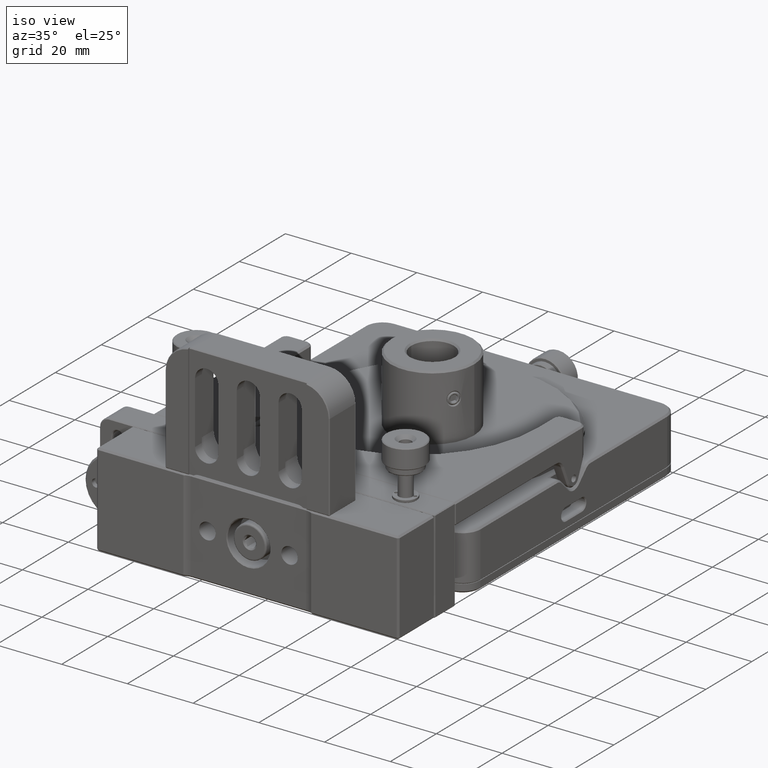
[diagram: clean part render]
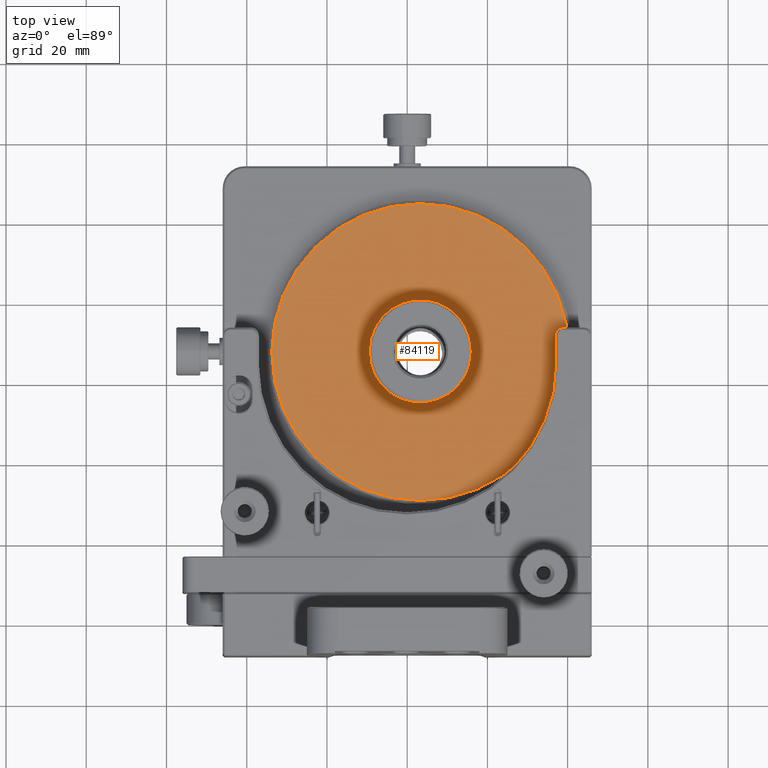
[diagram: tour spotlight — one face highlighted and labeled with its STEP entity id]
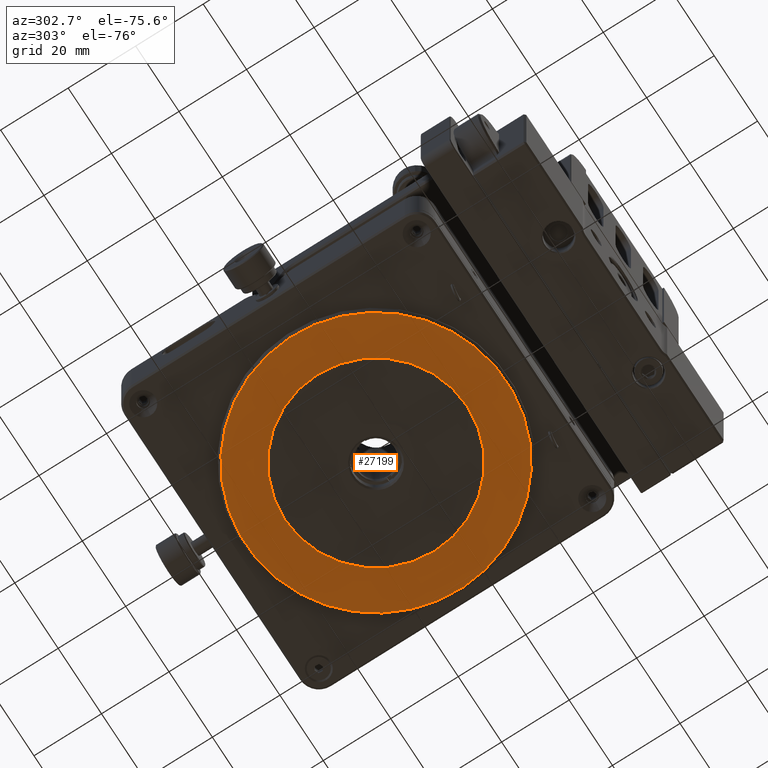
[diagram: tour spotlight — one face highlighted and labeled with its STEP entity id]
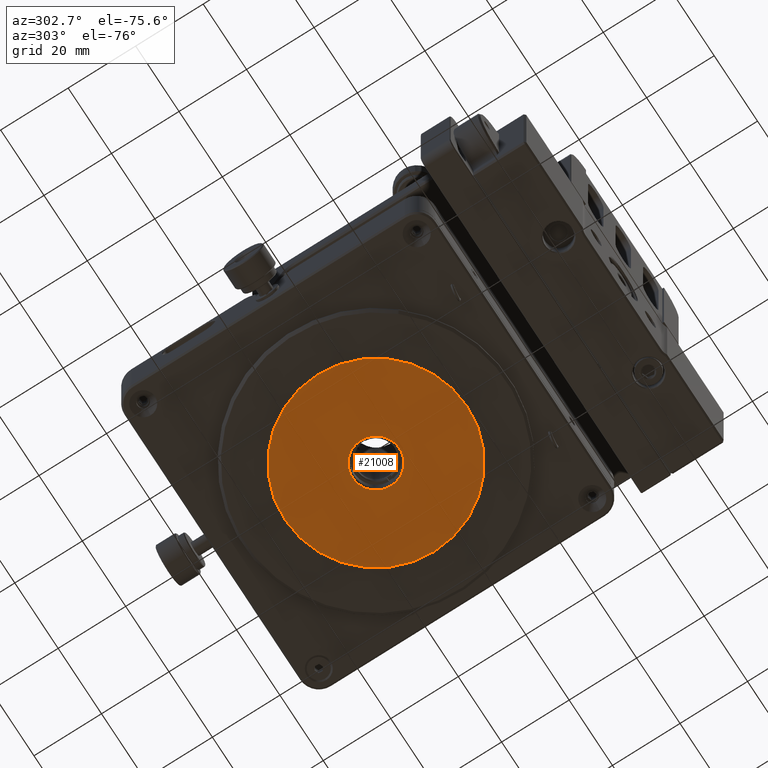
[diagram: tour spotlight — one face highlighted and labeled with its STEP entity id]
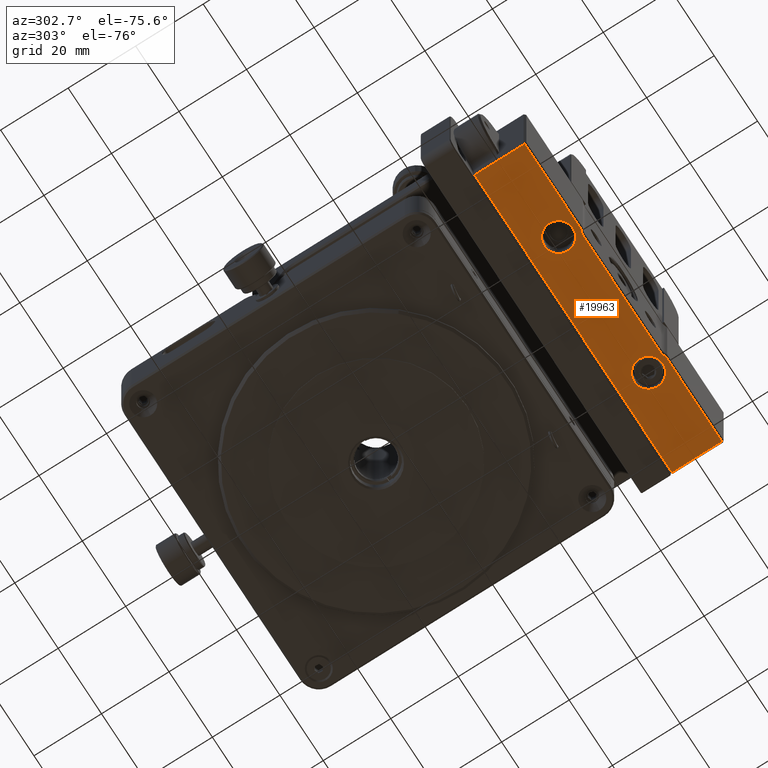
[diagram: tour spotlight — one face highlighted and labeled with its STEP entity id]
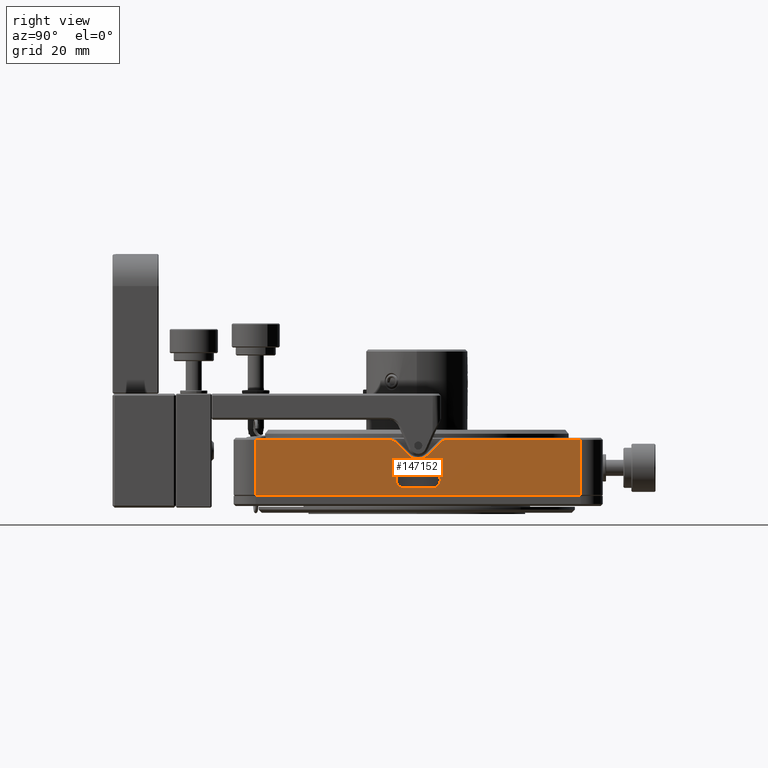
[diagram: tour spotlight — one face highlighted and labeled with its STEP entity id]
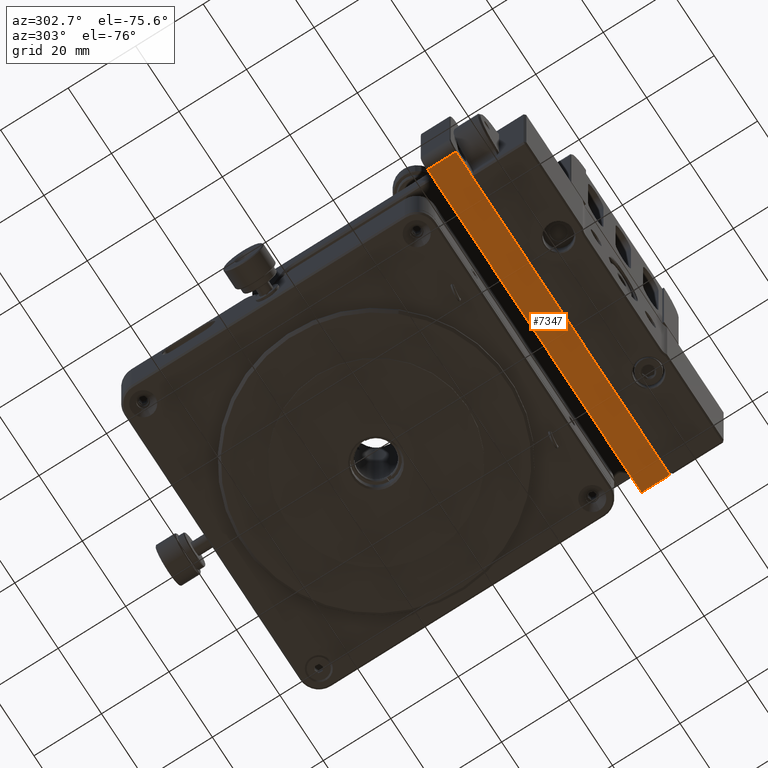
[diagram: tour spotlight — one face highlighted and labeled with its STEP entity id]
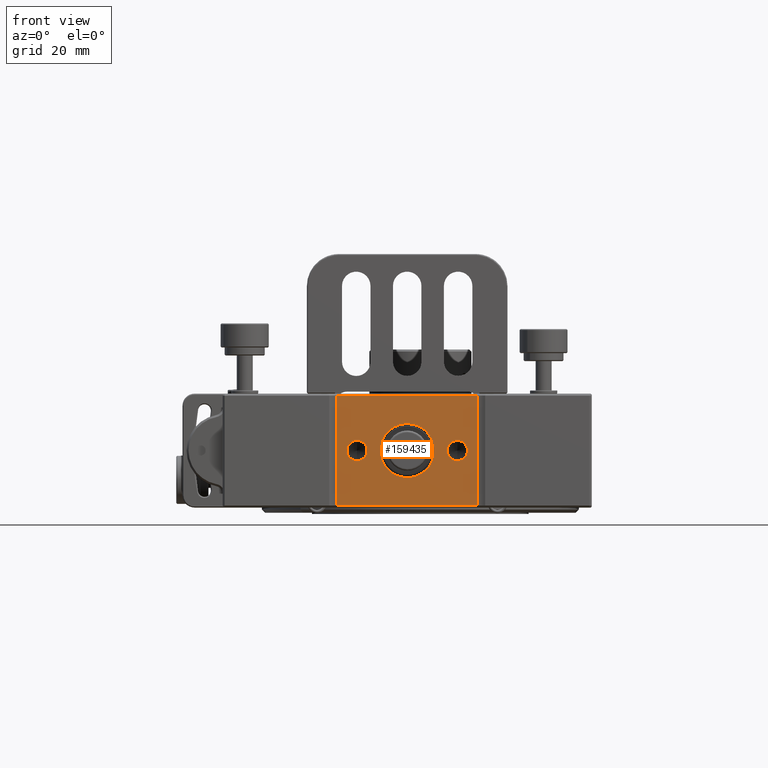
[diagram: tour spotlight — one face highlighted and labeled with its STEP entity id]
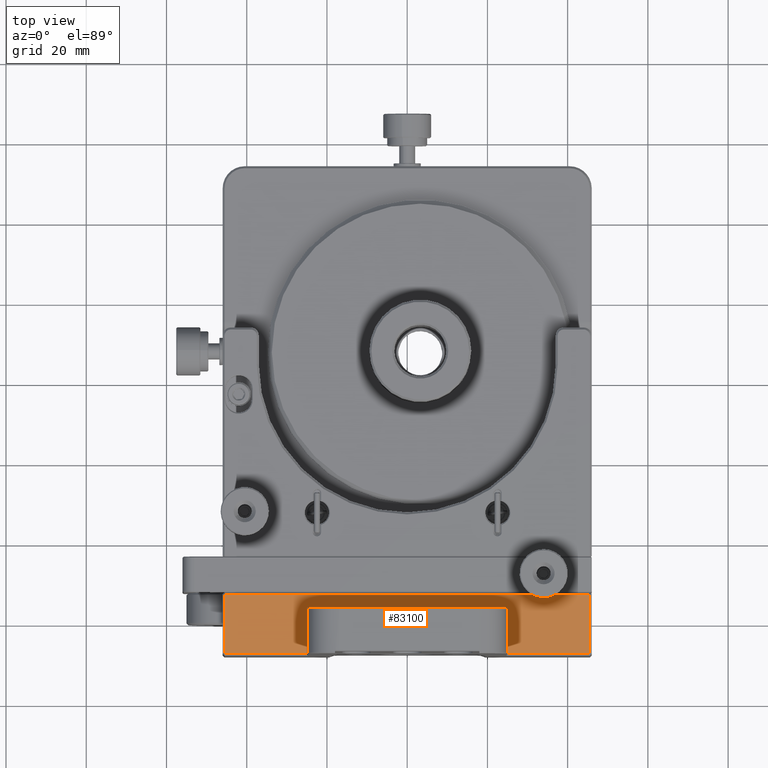
[diagram: tour spotlight — one face highlighted and labeled with its STEP entity id]
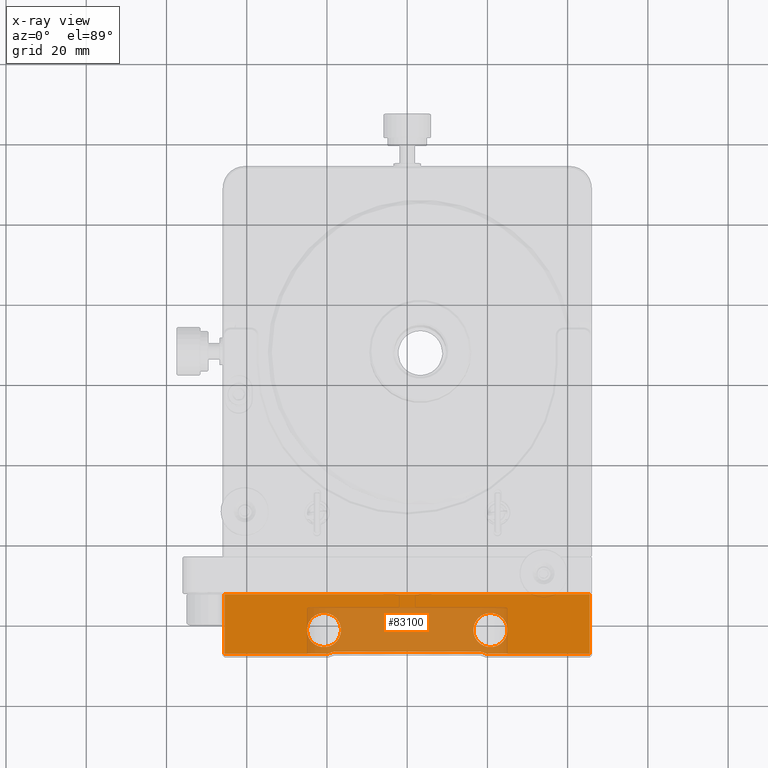
[diagram: x-ray of the same camera — body ghosted, this tour face saturated]
A machine part: a face-by-face anatomy tour. The part has 1398 B-rep faces; the first image is the clean iso view, then the 8 largest visible faces are spotlighted one at a time (largest first), each with its STEP entity span.

Face 1 — top view, entity #84119. In plain terms, the highlighted planar face has unit normal (0, 0, 1).
Definition (entity closure, byte-faithful):
#5955 = AXIS2_PLACEMENT_3D ( 'NONE', #39961, #134300, #120079 ) ;
#6163 = DIRECTION ( 'NONE',  ( 1.000000000000000000, 0.000000000000000000, 0.000000000000000000 ) ) ;
#6278 = ORIENTED_EDGE ( 'NONE', *, *, #121058, .T. ) ;
#9768 = EDGE_CURVE ( 'NONE', #132143, #134606, #70067, .T. ) ;
#19925 = ORIENTED_EDGE ( 'NONE', *, *, #75592, .T. ) ;
#21639 = CIRCLE ( 'NONE', #78543, 36.99999999999999289 ) ;
#22031 = ORIENTED_EDGE ( 'NONE', *, *, #103748, .T. ) ;
#28911 = DIRECTION ( 'NONE',  ( 0.000000000000000000, 0.000000000000000000, 1.000000000000000000 ) ) ;
#29723 = CARTESIAN_POINT ( 'NONE',  ( 3.261633096731147763, 67.93690672952565990, 5.200000000000008171 ) ) ;
#39916 = CIRCLE ( 'NONE', #139432, 12.69800000000000040 ) ;
#39961 = CARTESIAN_POINT ( 'NONE',  ( 3.261633096731147763, 67.93690672952565990, 5.200000000000009948 ) ) ;
#43936 = DIRECTION ( 'NONE',  ( -0.000000000000000000, -0.000000000000000000, -1.000000000000000000 ) ) ;
#53599 = CARTESIAN_POINT ( 'NONE',  ( -33.73836690326884025, 67.93690672952565990, 5.200000000000009948 ) ) ;
#59571 = CARTESIAN_POINT ( 'NONE',  ( 3.261633096731147763, 67.93690672952565990, 5.200000000000009948 ) ) ;
#63163 = FACE_OUTER_BOUND ( 'NONE', #143567, .T. ) ;
#65465 = VERTEX_POINT ( 'NONE', #147551 ) ;
#70067 = CIRCLE ( 'NONE', #172303, 36.99999999999999289 ) ;
#75592 = EDGE_CURVE ( 'NONE', #81756, #65465, #144565, .T. ) ;
#78543 = AXIS2_PLACEMENT_3D ( 'NONE', #59571, #111236, #6163 ) ;
#81756 = VERTEX_POINT ( 'NONE', #88404 ) ;
#84119 = ADVANCED_FACE ( 'NONE', ( #63163, #159269 ), #117449, .T. ) ;
#88404 = CARTESIAN_POINT ( 'NONE',  ( -9.436366903268853079, 67.93690672952565990, 5.200000000000008171 ) ) ;
#97366 = DIRECTION ( 'NONE',  ( 1.000000000000000000, 0.000000000000000000, 0.000000000000000000 ) ) ;
#103748 = EDGE_CURVE ( 'NONE', #134606, #132143, #21639, .T. ) ;
#105843 = DIRECTION ( 'NONE',  ( 1.000000000000000000, 0.000000000000000000, 0.000000000000000000 ) ) ;
#109880 = CARTESIAN_POINT ( 'NONE',  ( 3.261633096731147763, 67.93690672952565990, 5.200000000000009948 ) ) ;
#110411 = AXIS2_PLACEMENT_3D ( 'NONE', #132547, #121852, #105843 ) ;
#111236 = DIRECTION ( 'NONE',  ( 0.000000000000000000, 0.000000000000000000, 1.000000000000000000 ) ) ;
#111848 = ORIENTED_EDGE ( 'NONE', *, *, #9768, .T. ) ;
#117449 = PLANE ( 'NONE',  #5955 ) ;
#119591 = EDGE_LOOP ( 'NONE', ( #6278, #19925 ) ) ;
#120079 = DIRECTION ( 'NONE',  ( 1.000000000000000000, 0.000000000000000000, -0.000000000000000000 ) ) ;
#121058 = EDGE_CURVE ( 'NONE', #65465, #81756, #39916, .T. ) ;
#121852 = DIRECTION ( 'NONE',  ( -0.000000000000000000, -0.000000000000000000, -1.000000000000000000 ) ) ;
#125063 = CARTESIAN_POINT ( 'NONE',  ( 40.26163309673114554, 67.93690672952565990, 5.200000000000009948 ) ) ;
#132143 = VERTEX_POINT ( 'NONE', #125063 ) ;
#132547 = CARTESIAN_POINT ( 'NONE',  ( 3.261633096731147763, 67.93690672952565990, 5.200000000000008171 ) ) ;
#134300 = DIRECTION ( 'NONE',  ( 0.000000000000000000, 0.000000000000000000, 1.000000000000000000 ) ) ;
#134606 = VERTEX_POINT ( 'NONE', #53599 ) ;
#139432 = AXIS2_PLACEMENT_3D ( 'NONE', #29723, #43936, #97366 ) ;
#143567 = EDGE_LOOP ( 'NONE', ( #22031, #111848 ) ) ;
#144565 = CIRCLE ( 'NONE', #110411, 12.69800000000000040 ) ;
#147551 = CARTESIAN_POINT ( 'NONE',  ( 15.95963309673114772, 67.93690672952565990, 5.200000000000008171 ) ) ;
#159269 = FACE_BOUND ( 'NONE', #119591, .T. ) ;
#172303 = AXIS2_PLACEMENT_3D ( 'NONE', #109880, #28911, #174868 ) ;
#174868 = DIRECTION ( 'NONE',  ( 1.000000000000000000, 0.000000000000000000, 0.000000000000000000 ) ) ;

Face 2 — auxiliary view, entity #27199. In plain terms, the highlighted planar face has unit normal (-0, 0, -1).
Definition (entity closure, byte-faithful):
#287 = ORIENTED_EDGE ( 'NONE', *, *, #173127, .T. ) ;
#1193 = DIRECTION ( 'NONE',  ( 0.7555984124574209870, 0.6550351434021115526, 0.000000000000000000 ) ) ;
#1819 = DIRECTION ( 'NONE',  ( -5.454263236077491417E-17, 6.291620661603332126E-17, -1.000000000000000000 ) ) ;
#9211 = FACE_OUTER_BOUND ( 'NONE', #137910, .T. ) ;
#10942 = PLANE ( 'NONE',  #49997 ) ;
#11166 = CARTESIAN_POINT ( 'NONE',  ( -25.98002546537102120, 42.58704667986394554, -15.49999999999999467 ) ) ;
#13057 = CIRCLE ( 'NONE', #18801, 26.99999999999999645 ) ;
#18801 = AXIS2_PLACEMENT_3D ( 'NONE', #80155, #1819, #135326 ) ;
#21371 = CARTESIAN_POINT ( 'NONE',  ( 32.50329165883330518, 93.28676677918733162, -15.49999999999999467 ) ) ;
#22565 = FACE_BOUND ( 'NONE', #42042, .T. ) ;
#27199 = ADVANCED_FACE ( 'NONE', ( #22565, #9211 ), #10942, .T. ) ;
#34838 = VERTEX_POINT ( 'NONE', #107040 ) ;
#41336 = ORIENTED_EDGE ( 'NONE', *, *, #159779, .F. ) ;
#42042 = EDGE_LOOP ( 'NONE', ( #41336, #151200 ) ) ;
#43810 = DIRECTION ( 'NONE',  ( -5.454263236077491417E-17, 6.291620661603332126E-17, -1.000000000000000000 ) ) ;
#47848 = VERTEX_POINT ( 'NONE', #21371 ) ;
#49997 = AXIS2_PLACEMENT_3D ( 'NONE', #76862, #117780, #172056 ) ;
#52266 = VERTEX_POINT ( 'NONE', #78547 ) ;
#57186 = CARTESIAN_POINT ( 'NONE',  ( 3.261633096731141102, 67.93690672952564569, -15.49999999999999467 ) ) ;
#66666 = VERTEX_POINT ( 'NONE', #11166 ) ;
#68281 = AXIS2_PLACEMENT_3D ( 'NONE', #106283, #82250, #136540 ) ;
#74288 = EDGE_CURVE ( 'NONE', #47848, #66666, #113194, .T. ) ;
#76859 = AXIS2_PLACEMENT_3D ( 'NONE', #57186, #43810, #123061 ) ;
#76862 = CARTESIAN_POINT ( 'NONE',  ( 3.261633096731141102, 67.93690672952564569, -15.49999999999999467 ) ) ;
#78547 = CARTESIAN_POINT ( 'NONE',  ( 30.26163309673114554, 67.93690672952565990, -15.49999999999999645 ) ) ;
#80155 = CARTESIAN_POINT ( 'NONE',  ( 3.261633096731147763, 67.93690672952565990, -15.49999999999999467 ) ) ;
#82250 = DIRECTION ( 'NONE',  ( -5.454263236077491417E-17, 6.291620661603332126E-17, -1.000000000000000000 ) ) ;
#84805 = CARTESIAN_POINT ( 'NONE',  ( 3.261633096731141102, 67.93690672952564569, -15.49999999999999467 ) ) ;
#87542 = AXIS2_PLACEMENT_3D ( 'NONE', #84805, #139102, #1193 ) ;
#106283 = CARTESIAN_POINT ( 'NONE',  ( 3.261633096731147763, 67.93690672952565990, -15.49999999999999467 ) ) ;
#107040 = CARTESIAN_POINT ( 'NONE',  ( -23.73836690326885090, 67.93690672952565990, -15.49999999999999289 ) ) ;
#113194 = CIRCLE ( 'NONE', #87542, 38.69999999999996021 ) ;
#117780 = DIRECTION ( 'NONE',  ( -5.454263236077490801E-17, 6.291620661603332126E-17, -1.000000000000000000 ) ) ;
#120878 = EDGE_CURVE ( 'NONE', #52266, #34838, #144985, .T. ) ;
#121652 = ORIENTED_EDGE ( 'NONE', *, *, #74288, .T. ) ;
#123061 = DIRECTION ( 'NONE',  ( 0.7555984124574209870, 0.6550351434021115526, 0.000000000000000000 ) ) ;
#135326 = DIRECTION ( 'NONE',  ( 0.000000000000000000, 1.000000000000000000, 6.424901762877064728E-17 ) ) ;
#136540 = DIRECTION ( 'NONE',  ( 0.000000000000000000, 1.000000000000000000, 6.424901762877064728E-17 ) ) ;
#137910 = EDGE_LOOP ( 'NONE', ( #287, #121652 ) ) ;
#139102 = DIRECTION ( 'NONE',  ( -5.454263236077491417E-17, 6.291620661603332126E-17, -1.000000000000000000 ) ) ;
#144985 = CIRCLE ( 'NONE', #68281, 26.99999999999999645 ) ;
#145076 = CIRCLE ( 'NONE', #76859, 38.69999999999996021 ) ;
#151200 = ORIENTED_EDGE ( 'NONE', *, *, #120878, .F. ) ;
#159779 = EDGE_CURVE ( 'NONE', #34838, #52266, #13057, .T. ) ;
#172056 = DIRECTION ( 'NONE',  ( 0.7555984124574209870, 0.6550351434021117747, 0.000000000000000000 ) ) ;
#173127 = EDGE_CURVE ( 'NONE', #66666, #47848, #145076, .T. ) ;

Face 3 — auxiliary view, entity #21008. In plain terms, the highlighted planar face has unit normal (0, 0, 1).
Definition (entity closure, byte-faithful):
#5701 = ORIENTED_EDGE ( 'NONE', *, *, #52509, .T. ) ;
#13046 = AXIS2_PLACEMENT_3D ( 'NONE', #164058, #151579, #99028 ) ;
#13576 = VERTEX_POINT ( 'NONE', #130342 ) ;
#21008 = ADVANCED_FACE ( 'NONE', ( #118914, #75366 ), #49521, .F. ) ;
#24574 = VERTEX_POINT ( 'NONE', #152914 ) ;
#30927 = CARTESIAN_POINT ( 'NONE',  ( 3.261633096731147763, 67.93690672952565990, -15.79999999999999538 ) ) ;
#40245 = DIRECTION ( 'NONE',  ( 0.000000000000000000, 0.000000000000000000, -1.000000000000000000 ) ) ;
#49521 = PLANE ( 'NONE',  #53704 ) ;
#52131 = DIRECTION ( 'NONE',  ( 0.000000000000000000, 0.000000000000000000, 1.000000000000000000 ) ) ;
#52509 = EDGE_CURVE ( 'NONE', #24574, #13576, #114687, .T. ) ;
#52698 = CARTESIAN_POINT ( 'NONE',  ( 3.261633096731147763, 67.93690672952565990, -15.79999999999999538 ) ) ;
#52792 = CIRCLE ( 'NONE', #13046, 6.974999999999995204 ) ;
#53704 = AXIS2_PLACEMENT_3D ( 'NONE', #103798, #52131, #173201 ) ;
#53901 = EDGE_CURVE ( 'NONE', #153304, #141161, #171713, .T. ) ;
#64961 = AXIS2_PLACEMENT_3D ( 'NONE', #52698, #40245, #174633 ) ;
#75364 = CARTESIAN_POINT ( 'NONE',  ( 30.26163309673114554, 67.93690672952565990, -15.79999999999999538 ) ) ;
#75366 = FACE_OUTER_BOUND ( 'NONE', #172231, .T. ) ;
#77682 = CARTESIAN_POINT ( 'NONE',  ( 3.261633096731147763, 67.93690672952565990, -15.79999999999999538 ) ) ;
#85211 = DIRECTION ( 'NONE',  ( -1.000000000000000000, 0.000000000000000000, 0.000000000000000000 ) ) ;
#92144 = AXIS2_PLACEMENT_3D ( 'NONE', #30927, #167096, #85211 ) ;
#99028 = DIRECTION ( 'NONE',  ( 1.000000000000000000, 0.000000000000000000, 0.000000000000000000 ) ) ;
#103798 = CARTESIAN_POINT ( 'NONE',  ( 3.261633096731147763, 67.93690672952565990, -15.79999999999999538 ) ) ;
#105253 = DIRECTION ( 'NONE',  ( 1.000000000000000000, 0.000000000000000000, 0.000000000000000000 ) ) ;
#110610 = ORIENTED_EDGE ( 'NONE', *, *, #164237, .T. ) ;
#114687 = CIRCLE ( 'NONE', #151692, 6.974999999999995204 ) ;
#118914 = FACE_BOUND ( 'NONE', #174818, .T. ) ;
#122062 = ORIENTED_EDGE ( 'NONE', *, *, #53901, .T. ) ;
#130342 = CARTESIAN_POINT ( 'NONE',  ( -3.713366903268847441, 67.93690672952565990, -15.79999999999999538 ) ) ;
#134443 = EDGE_CURVE ( 'NONE', #141161, #153304, #150095, .T. ) ;
#141161 = VERTEX_POINT ( 'NONE', #175396 ) ;
#150095 = CIRCLE ( 'NONE', #64961, 27.00000000000000000 ) ;
#151579 = DIRECTION ( 'NONE',  ( 0.000000000000000000, 0.000000000000000000, 1.000000000000000000 ) ) ;
#151692 = AXIS2_PLACEMENT_3D ( 'NONE', #77682, #172893, #105253 ) ;
#152914 = CARTESIAN_POINT ( 'NONE',  ( 10.23663309673114163, 67.93690672952565990, -15.79999999999999538 ) ) ;
#153137 = ORIENTED_EDGE ( 'NONE', *, *, #134443, .T. ) ;
#153304 = VERTEX_POINT ( 'NONE', #75364 ) ;
#164058 = CARTESIAN_POINT ( 'NONE',  ( 3.261633096731147763, 67.93690672952565990, -15.79999999999999538 ) ) ;
#164237 = EDGE_CURVE ( 'NONE', #13576, #24574, #52792, .T. ) ;
#167096 = DIRECTION ( 'NONE',  ( 0.000000000000000000, 0.000000000000000000, -1.000000000000000000 ) ) ;
#171713 = CIRCLE ( 'NONE', #92144, 27.00000000000000000 ) ;
#172231 = EDGE_LOOP ( 'NONE', ( #153137, #122062 ) ) ;
#172893 = DIRECTION ( 'NONE',  ( 0.000000000000000000, 0.000000000000000000, 1.000000000000000000 ) ) ;
#173201 = DIRECTION ( 'NONE',  ( 1.000000000000000000, 0.000000000000000000, -0.000000000000000000 ) ) ;
#174633 = DIRECTION ( 'NONE',  ( -1.000000000000000000, 0.000000000000000000, 0.000000000000000000 ) ) ;
#174818 = EDGE_LOOP ( 'NONE', ( #110610, #5701 ) ) ;
#175396 = CARTESIAN_POINT ( 'NONE',  ( -23.73836690326885090, 67.93690672952565990, -15.79999999999999538 ) ) ;

Face 4 — auxiliary view, entity #19963. In plain terms, the highlighted planar face has unit normal (0, 0, 1).
Definition (entity closure, byte-faithful):
#705 = EDGE_CURVE ( 'NONE', #156626, #132488, #61675, .T. ) ;
#1636 = LINE ( 'NONE', #27458, #110711 ) ;
#2907 = FACE_BOUND ( 'NONE', #63674, .T. ) ;
#5373 = CARTESIAN_POINT ( 'NONE',  ( -17.50000000000000000, -11.39999999999999858, -14.19999999999999929 ) ) ;
#5566 = CARTESIAN_POINT ( 'NONE',  ( 24.99999999999998934, -1.550000000000000488, -14.19999999999999929 ) ) ;
#8295 = ORIENTED_EDGE ( 'NONE', *, *, #102296, .T. ) ;
#13967 = AXIS2_PLACEMENT_3D ( 'NONE', #67913, #135539, #44701 ) ;
#14021 = CARTESIAN_POINT ( 'NONE',  ( -45.49999999999997868, 7.900000000000000355, -14.19999999999999929 ) ) ;
#19963 = ADVANCED_FACE ( 'NONE', ( #2907, #152416, #123941 ), #164920, .F. ) ;
#24235 = EDGE_CURVE ( 'NONE', #50756, #124958, #1636, .T. ) ;
#24429 = DIRECTION ( 'NONE',  ( -1.000000000000000000, -1.239088197126290570E-16, 0.000000000000000000 ) ) ;
#25584 = ORIENTED_EDGE ( 'NONE', *, *, #128300, .T. ) ;
#25652 = AXIS2_PLACEMENT_3D ( 'NONE', #104032, #92413, #170823 ) ;
#27350 = DIRECTION ( 'NONE',  ( 0.000000000000000000, 1.000000000000000000, 0.000000000000000000 ) ) ;
#27458 = CARTESIAN_POINT ( 'NONE',  ( -45.99999999999999289, -7.399999999999986144, -14.19999999999999929 ) ) ;
#27959 = CARTESIAN_POINT ( 'NONE',  ( 45.49999999999999289, 7.399999999999986144, -14.19999999999999929 ) ) ;
#29235 = DIRECTION ( 'NONE',  ( 1.000000000000000000, 0.000000000000000000, 0.000000000000000000 ) ) ;
#29476 = DIRECTION ( 'NONE',  ( 0.000000000000000000, 0.000000000000000000, 1.000000000000000000 ) ) ;
#29643 = CARTESIAN_POINT ( 'NONE',  ( 17.50000000000000000, -11.39999999999999503, -14.19999999999999929 ) ) ;
#30000 = DIRECTION ( 'NONE',  ( 1.000000000000000000, 0.000000000000000000, 0.000000000000000000 ) ) ;
#30294 = VECTOR ( 'NONE', #123847, 1000.000000000000000 ) ;
#37866 = CARTESIAN_POINT ( 'NONE',  ( 19.56155281281029090, -7.399999999999986144, -14.19999999999999929 ) ) ;
#38114 = ORIENTED_EDGE ( 'NONE', *, *, #139364, .T. ) ;
#39361 = VERTEX_POINT ( 'NONE', #174624 ) ;
#44701 = DIRECTION ( 'NONE',  ( 1.000000000000000000, 0.000000000000000000, -0.000000000000000000 ) ) ;
#46686 = ORIENTED_EDGE ( 'NONE', *, *, #24235, .T. ) ;
#47449 = CARTESIAN_POINT ( 'NONE',  ( -25.00000000000000355, -1.550000000000006040, -14.19999999999999929 ) ) ;
#48574 = VERTEX_POINT ( 'NONE', #47449 ) ;
#49750 = VECTOR ( 'NONE', #27350, 1000.000000000000000 ) ;
#50340 = CIRCLE ( 'NONE', #107251, 4.250000000000003553 ) ;
#50756 = VERTEX_POINT ( 'NONE', #78756 ) ;
#51109 = CARTESIAN_POINT ( 'NONE',  ( 46.00000000000000711, 7.399999999999986144, -14.19999999999999929 ) ) ;
#54526 = ORIENTED_EDGE ( 'NONE', *, *, #171293, .T. ) ;
#57058 = ORIENTED_EDGE ( 'NONE', *, *, #83921, .T. ) ;
#57173 = AXIS2_PLACEMENT_3D ( 'NONE', #5373, #101452, #169991 ) ;
#58553 = VECTOR ( 'NONE', #121407, 1000.000000000000000 ) ;
#61675 = CIRCLE ( 'NONE', #161131, 4.249999999999990230 ) ;
#63674 = EDGE_LOOP ( 'NONE', ( #38114, #144755 ) ) ;
#67102 = LINE ( 'NONE', #51109, #58553 ) ;
#67409 = LINE ( 'NONE', #14021, #49750 ) ;
#67913 = CARTESIAN_POINT ( 'NONE',  ( -45.99999999999999289, 7.900000000000000355, -14.19999999999999929 ) ) ;
#70458 = LINE ( 'NONE', #124748, #30294 ) ;
#70585 = DIRECTION ( 'NONE',  ( 0.000000000000000000, 0.000000000000000000, 1.000000000000000000 ) ) ;
#75232 = LINE ( 'NONE', #117054, #159221 ) ;
#78756 = CARTESIAN_POINT ( 'NONE',  ( -19.56155281281028380, -7.399999999999986144, -14.19999999999999929 ) ) ;
#80301 = ORIENTED_EDGE ( 'NONE', *, *, #127345, .T. ) ;
#81285 = ORIENTED_EDGE ( 'NONE', *, *, #120088, .T. ) ;
#83921 = EDGE_CURVE ( 'NONE', #136054, #50756, #116732, .T. ) ;
#84135 = AXIS2_PLACEMENT_3D ( 'NONE', #141545, #29476, #97118 ) ;
#85681 = DIRECTION ( 'NONE',  ( 1.000000000000000000, 0.000000000000000000, 0.000000000000000000 ) ) ;
#92413 = DIRECTION ( 'NONE',  ( 0.000000000000000000, 0.000000000000000000, 1.000000000000000000 ) ) ;
#92669 = CIRCLE ( 'NONE', #160924, 4.500000000000003553 ) ;
#95094 = DIRECTION ( 'NONE',  ( 0.000000000000000000, 0.000000000000000000, 1.000000000000000000 ) ) ;
#95367 = ORIENTED_EDGE ( 'NONE', *, *, #165245, .T. ) ;
#97118 = DIRECTION ( 'NONE',  ( 1.000000000000000000, 0.000000000000000000, 0.000000000000000000 ) ) ;
#101452 = DIRECTION ( 'NONE',  ( 0.000000000000000000, 0.000000000000000000, 1.000000000000000000 ) ) ;
#102296 = EDGE_CURVE ( 'NONE', #124958, #133057, #67409, .T. ) ;
#102713 = CARTESIAN_POINT ( 'NONE',  ( -45.49999999999997868, 7.399999999999986144, -14.19999999999999929 ) ) ;
#104032 = CARTESIAN_POINT ( 'NONE',  ( -20.75000000000000000, -1.550000000000006040, -14.19999999999999929 ) ) ;
#107251 = AXIS2_PLACEMENT_3D ( 'NONE', #165310, #124362, #30000 ) ;
#107396 = VERTEX_POINT ( 'NONE', #37866 ) ;
#110711 = VECTOR ( 'NONE', #152021, 1000.000000000000000 ) ;
#112345 = CARTESIAN_POINT ( 'NONE',  ( 45.49999999999999289, -7.399999999999986144, -14.19999999999999929 ) ) ;
#114526 = VERTEX_POINT ( 'NONE', #27959 ) ;
#116732 = CIRCLE ( 'NONE', #57173, 4.500000000000002665 ) ;
#117054 = CARTESIAN_POINT ( 'NONE',  ( -45.99999999999999289, -6.899999999999999467, -14.19999999999999929 ) ) ;
#118262 = ORIENTED_EDGE ( 'NONE', *, *, #130739, .T. ) ;
#120088 = EDGE_CURVE ( 'NONE', #158034, #136054, #75232, .T. ) ;
#121407 = DIRECTION ( 'NONE',  ( 1.000000000000000000, 0.000000000000000000, 0.000000000000000000 ) ) ;
#122221 = CIRCLE ( 'NONE', #25652, 4.250000000000003553 ) ;
#123571 = CARTESIAN_POINT ( 'NONE',  ( 20.75000000000000000, -1.550000000000000933, -14.19999999999999929 ) ) ;
#123663 = CARTESIAN_POINT ( 'NONE',  ( -17.50000000000000000, -6.899999999999996803, -14.19999999999999929 ) ) ;
#123847 = DIRECTION ( 'NONE',  ( -1.000000000000000000, 0.000000000000000000, 0.000000000000000000 ) ) ;
#123941 = FACE_OUTER_BOUND ( 'NONE', #154416, .T. ) ;
#124362 = DIRECTION ( 'NONE',  ( 0.000000000000000000, 0.000000000000000000, 1.000000000000000000 ) ) ;
#124748 = CARTESIAN_POINT ( 'NONE',  ( -45.99999999999999289, -7.399999999999986144, -14.19999999999999929 ) ) ;
#124762 = EDGE_LOOP ( 'NONE', ( #118262, #54526 ) ) ;
#124958 = VERTEX_POINT ( 'NONE', #162253 ) ;
#127345 = EDGE_CURVE ( 'NONE', #170528, #107396, #70458, .T. ) ;
#128300 = EDGE_CURVE ( 'NONE', #114526, #170528, #152007, .T. ) ;
#130739 = EDGE_CURVE ( 'NONE', #48574, #39361, #50340, .T. ) ;
#132488 = VERTEX_POINT ( 'NONE', #165137 ) ;
#133057 = VERTEX_POINT ( 'NONE', #102713 ) ;
#135264 = ORIENTED_EDGE ( 'NONE', *, *, #164263, .T. ) ;
#135539 = DIRECTION ( 'NONE',  ( 0.000000000000000000, 0.000000000000000000, 1.000000000000000000 ) ) ;
#136054 = VERTEX_POINT ( 'NONE', #123663 ) ;
#137774 = DIRECTION ( 'NONE',  ( 0.000000000000000000, -1.000000000000000000, 0.000000000000000000 ) ) ;
#139364 = EDGE_CURVE ( 'NONE', #132488, #156626, #166620, .T. ) ;
#141545 = CARTESIAN_POINT ( 'NONE',  ( 20.75000000000000000, -1.550000000000000933, -14.19999999999999929 ) ) ;
#142994 = CARTESIAN_POINT ( 'NONE',  ( 17.50000000000000000, -6.899999999999992362, -14.19999999999999929 ) ) ;
#144755 = ORIENTED_EDGE ( 'NONE', *, *, #705, .T. ) ;
#149728 = VECTOR ( 'NONE', #137774, 1000.000000000000000 ) ;
#152007 = LINE ( 'NONE', #167131, #149728 ) ;
#152021 = DIRECTION ( 'NONE',  ( -1.000000000000000000, 0.000000000000000000, 0.000000000000000000 ) ) ;
#152416 = FACE_BOUND ( 'NONE', #124762, .T. ) ;
#154416 = EDGE_LOOP ( 'NONE', ( #80301, #135264, #81285, #57058, #46686, #8295, #95367, #25584 ) ) ;
#156626 = VERTEX_POINT ( 'NONE', #5566 ) ;
#158034 = VERTEX_POINT ( 'NONE', #142994 ) ;
#159221 = VECTOR ( 'NONE', #24429, 1000.000000000000000 ) ;
#160924 = AXIS2_PLACEMENT_3D ( 'NONE', #29643, #70585, #85681 ) ;
#161131 = AXIS2_PLACEMENT_3D ( 'NONE', #123571, #95094, #29235 ) ;
#162253 = CARTESIAN_POINT ( 'NONE',  ( -45.49999999999997868, -7.399999999999986144, -14.19999999999999929 ) ) ;
#164263 = EDGE_CURVE ( 'NONE', #107396, #158034, #92669, .T. ) ;
#164920 = PLANE ( 'NONE',  #13967 ) ;
#165137 = CARTESIAN_POINT ( 'NONE',  ( 16.50000000000001066, -1.550000000000000933, -14.19999999999999929 ) ) ;
#165245 = EDGE_CURVE ( 'NONE', #133057, #114526, #67102, .T. ) ;
#165310 = CARTESIAN_POINT ( 'NONE',  ( -20.75000000000000000, -1.550000000000006040, -14.19999999999999929 ) ) ;
#166620 = CIRCLE ( 'NONE', #84135, 4.249999999999990230 ) ;
#167131 = CARTESIAN_POINT ( 'NONE',  ( 45.49999999999999289, 7.900000000000000355, -14.19999999999999929 ) ) ;
#169991 = DIRECTION ( 'NONE',  ( 1.000000000000000000, 0.000000000000000000, 0.000000000000000000 ) ) ;
#170528 = VERTEX_POINT ( 'NONE', #112345 ) ;
#170823 = DIRECTION ( 'NONE',  ( 1.000000000000000000, 0.000000000000000000, 0.000000000000000000 ) ) ;
#171293 = EDGE_CURVE ( 'NONE', #39361, #48574, #122221, .T. ) ;
#174624 = CARTESIAN_POINT ( 'NONE',  ( -16.49999999999999645, -1.550000000000005596, -14.19999999999999929 ) ) ;

Face 5 — right view, entity #147152. In plain terms, the highlighted planar face has unit normal (-1, -0, 0).
Definition (entity closure, byte-faithful):
#1144 = DIRECTION ( 'NONE',  ( 1.508455196501571429E-16, -1.000000000000000000, 0.000000000000000000 ) ) ;
#2192 = AXIS2_PLACEMENT_3D ( 'NONE', #26136, #55485, #164086 ) ;
#7930 = LINE ( 'NONE', #48857, #114366 ) ;
#9235 = CARTESIAN_POINT ( 'NONE',  ( 46.00000000000000711, 62.86532829120239541, 1.967766952966372607 ) ) ;
#12785 = CARTESIAN_POINT ( 'NONE',  ( 46.00000000000000711, 71.79999999999999716, -7.299999999999990941 ) ) ;
#13202 = EDGE_CURVE ( 'NONE', #80930, #58039, #32503, .T. ) ;
#13718 = CIRCLE ( 'NONE', #144443, 3.300000000000011369 ) ;
#14185 = EDGE_CURVE ( 'NONE', #58039, #128826, #31363, .T. ) ;
#14533 = AXIS2_PLACEMENT_3D ( 'NONE', #103903, #147480, #76346 ) ;
#20319 = CARTESIAN_POINT ( 'NONE',  ( 46.00000000000000000, 114.2999999999999972, -11.04999999999997762 ) ) ;
#25825 = CIRCLE ( 'NONE', #14533, 2.499999999999988454 ) ;
#26136 = CARTESIAN_POINT ( 'NONE',  ( 46.00000000000000711, 61.09756133823603363, 0.2000000000000083378 ) ) ;
#27400 = ORIENTED_EDGE ( 'NONE', *, *, #54985, .T. ) ;
#29424 = EDGE_CURVE ( 'NONE', #32374, #109858, #13718, .T. ) ;
#30465 = CARTESIAN_POINT ( 'NONE',  ( 46.00000000000001421, 27.80000000000001847, 2.699999999999993960 ) ) ;
#31363 = CIRCLE ( 'NONE', #145050, 2.000000000000015543 ) ;
#31488 = LINE ( 'NONE', #68034, #68949 ) ;
#32265 = ORIENTED_EDGE ( 'NONE', *, *, #33893, .T. ) ;
#32374 = VERTEX_POINT ( 'NONE', #132193 ) ;
#32503 = LINE ( 'NONE', #35125, #68197 ) ;
#32692 = EDGE_CURVE ( 'NONE', #128826, #149194, #149056, .T. ) ;
#33255 = CARTESIAN_POINT ( 'NONE',  ( 46.00000000000000000, 108.8000000000000114, 2.699999999999993960 ) ) ;
#33319 = DIRECTION ( 'NONE',  ( 1.066638898562349011E-16, -0.7071067811865487940, 0.7071067811865463515 ) ) ;
#33893 = EDGE_CURVE ( 'NONE', #35698, #173126, #152600, .T. ) ;
#35125 = CARTESIAN_POINT ( 'NONE',  ( 46.00000000000000000, 114.2999999999999972, -5.299999999999983835 ) ) ;
#35698 = VERTEX_POINT ( 'NONE', #159496 ) ;
#36670 = VECTOR ( 'NONE', #73362, 1000.000000000000000 ) ;
#38054 = DIRECTION ( 'NONE',  ( 0.000000000000000000, 0.000000000000000000, -1.000000000000000000 ) ) ;
#38303 = CARTESIAN_POINT ( 'NONE',  ( 46.00000000000000711, 68.29999999999999716, 1.200000000000008393 ) ) ;
#43876 = ORIENTED_EDGE ( 'NONE', *, *, #29424, .T. ) ;
#44666 = EDGE_CURVE ( 'NONE', #145410, #32374, #31488, .T. ) ;
#48857 = CARTESIAN_POINT ( 'NONE',  ( 46.00000000000000000, 108.8000000000000114, 3.200000000000008171 ) ) ;
#49584 = CARTESIAN_POINT ( 'NONE',  ( 46.00000000000000000, 114.2999999999999972, 3.200000000000008171 ) ) ;
#51990 = VERTEX_POINT ( 'NONE', #33255 ) ;
#53522 = VERTEX_POINT ( 'NONE', #90516 ) ;
#54364 = ORIENTED_EDGE ( 'NONE', *, *, #143593, .T. ) ;
#54747 = CARTESIAN_POINT ( 'NONE',  ( 46.00000000000000000, 114.2999999999999972, -9.299999999999984723 ) ) ;
#54985 = EDGE_CURVE ( 'NONE', #51990, #121322, #83876, .T. ) ;
#55236 = ORIENTED_EDGE ( 'NONE', *, *, #44666, .T. ) ;
#55485 = DIRECTION ( 'NONE',  ( 1.000000000000000000, 1.508455196501571429E-16, -0.000000000000000000 ) ) ;
#57775 = EDGE_CURVE ( 'NONE', #53522, #51990, #7930, .T. ) ;
#58039 = VERTEX_POINT ( 'NONE', #173422 ) ;
#60384 = LINE ( 'NONE', #20319, #77028 ) ;
#61141 = AXIS2_PLACEMENT_3D ( 'NONE', #49584, #74568, #130589 ) ;
#64276 = CARTESIAN_POINT ( 'NONE',  ( 46.00000000000000711, 75.50243866176396068, 2.699999999999993960 ) ) ;
#68034 = CARTESIAN_POINT ( 'NONE',  ( 46.00000000000000711, 70.63345237791561715, -1.133452377915615594 ) ) ;
#68197 = VECTOR ( 'NONE', #88543, 1000.000000000000000 ) ;
#68949 = VECTOR ( 'NONE', #122330, 1000.000000000000000 ) ;
#69815 = ORIENTED_EDGE ( 'NONE', *, *, #14185, .T. ) ;
#72127 = VERTEX_POINT ( 'NONE', #147210 ) ;
#73362 = DIRECTION ( 'NONE',  ( 1.508455196501571429E-16, -1.000000000000000000, 0.000000000000000000 ) ) ;
#74568 = DIRECTION ( 'NONE',  ( -1.000000000000000000, -1.508455196501571429E-16, 0.000000000000000000 ) ) ;
#75029 = ORIENTED_EDGE ( 'NONE', *, *, #57775, .T. ) ;
#76309 = FACE_OUTER_BOUND ( 'NONE', #114200, .T. ) ;
#76346 = DIRECTION ( 'NONE',  ( 0.000000000000000000, -1.000000000000000000, -7.101524229780087175E-15 ) ) ;
#77028 = VECTOR ( 'NONE', #114655, 1000.000000000000000 ) ;
#77486 = CARTESIAN_POINT ( 'NONE',  ( 46.00000000000000711, 71.79999999999999716, -9.300000000000004263 ) ) ;
#79257 = DIRECTION ( 'NONE',  ( 0.000000000000000000, -1.000000000000000000, 0.000000000000000000 ) ) ;
#80754 = LINE ( 'NONE', #91469, #147816 ) ;
#80930 = VERTEX_POINT ( 'NONE', #101367 ) ;
#83017 = CARTESIAN_POINT ( 'NONE',  ( 46.00000000000000711, 75.50243866176396068, 2.699999999999993960 ) ) ;
#83876 = LINE ( 'NONE', #83017, #174639 ) ;
#84648 = DIRECTION ( 'NONE',  ( -1.000000000000000000, -1.508455196501571429E-16, 0.000000000000000000 ) ) ;
#87300 = EDGE_CURVE ( 'NONE', #173126, #174758, #80754, .T. ) ;
#88543 = DIRECTION ( 'NONE',  ( -1.508455196501571429E-16, 1.000000000000000000, 1.858632295689436595E-16 ) ) ;
#88781 = FACE_BOUND ( 'NONE', #126239, .T. ) ;
#90516 = CARTESIAN_POINT ( 'NONE',  ( 46.00000000000000000, 108.8000000000000114, -11.04999999999997762 ) ) ;
#91469 = CARTESIAN_POINT ( 'NONE',  ( 46.00000000000001421, 27.80000000000001847, 3.200000000000008171 ) ) ;
#92582 = DIRECTION ( 'NONE',  ( -1.000000000000000000, -1.508455196501571429E-16, 0.000000000000000000 ) ) ;
#97192 = ORIENTED_EDGE ( 'NONE', *, *, #149945, .T. ) ;
#101367 = CARTESIAN_POINT ( 'NONE',  ( 46.00000000000000711, 64.80000000000001137, -5.299999999999992717 ) ) ;
#101580 = CIRCLE ( 'NONE', #175544, 2.000000000000001776 ) ;
#103903 = CARTESIAN_POINT ( 'NONE',  ( 46.00000000000000711, 75.50243866176396068, 0.2000000000000083378 ) ) ;
#104972 = ORIENTED_EDGE ( 'NONE', *, *, #87300, .T. ) ;
#109858 = VERTEX_POINT ( 'NONE', #144937 ) ;
#111365 = CARTESIAN_POINT ( 'NONE',  ( 46.00000000000000711, 64.80000000000001137, -7.299999999999991829 ) ) ;
#113746 = PLANE ( 'NONE',  #61141 ) ;
#114200 = EDGE_LOOP ( 'NONE', ( #104972, #146614, #75029, #27400, #173535, #55236, #43876, #122740, #54364, #32265 ) ) ;
#114366 = VECTOR ( 'NONE', #172529, 1000.000000000000000 ) ;
#114655 = DIRECTION ( 'NONE',  ( -1.508455196501571429E-16, 1.000000000000000000, -0.000000000000000000 ) ) ;
#115692 = CARTESIAN_POINT ( 'NONE',  ( 46.00000000000000711, 73.73467170879759180, 1.967766952966371719 ) ) ;
#117009 = DIRECTION ( 'NONE',  ( -1.000000000000000000, -1.508455196501571429E-16, 0.000000000000000000 ) ) ;
#117360 = ORIENTED_EDGE ( 'NONE', *, *, #32692, .T. ) ;
#121322 = VERTEX_POINT ( 'NONE', #64276 ) ;
#122330 = DIRECTION ( 'NONE',  ( 1.066638898562349011E-16, -0.7071067811865487940, -0.7071067811865463515 ) ) ;
#122387 = DIRECTION ( 'NONE',  ( 1.508455196501571429E-16, -1.000000000000000000, -1.239088197126290324E-16 ) ) ;
#122740 = ORIENTED_EDGE ( 'NONE', *, *, #169250, .T. ) ;
#123070 = EDGE_CURVE ( 'NONE', #174758, #53522, #60384, .T. ) ;
#123123 = EDGE_CURVE ( 'NONE', #121322, #145410, #25825, .T. ) ;
#126239 = EDGE_LOOP ( 'NONE', ( #69815, #117360, #97192, #136105 ) ) ;
#128826 = VERTEX_POINT ( 'NONE', #77486 ) ;
#130589 = DIRECTION ( 'NONE',  ( 1.508455196501571429E-16, -1.000000000000000000, 0.000000000000000000 ) ) ;
#132193 = CARTESIAN_POINT ( 'NONE',  ( 46.00000000000000711, 70.63345237791561715, -1.133452377915616038 ) ) ;
#133644 = CARTESIAN_POINT ( 'NONE',  ( 46.00000000000000711, 64.80000000000001137, -9.299999999999991829 ) ) ;
#136105 = ORIENTED_EDGE ( 'NONE', *, *, #13202, .T. ) ;
#138944 = DIRECTION ( 'NONE',  ( 0.000000000000000000, -1.000000000000000000, 0.000000000000000000 ) ) ;
#141905 = LINE ( 'NONE', #9235, #152340 ) ;
#143593 = EDGE_CURVE ( 'NONE', #72127, #35698, #169896, .T. ) ;
#143609 = CARTESIAN_POINT ( 'NONE',  ( 46.00000000000001421, 27.80000000000001847, 2.699999999999993960 ) ) ;
#144443 = AXIS2_PLACEMENT_3D ( 'NONE', #38303, #92582, #79257 ) ;
#144937 = CARTESIAN_POINT ( 'NONE',  ( 46.00000000000000711, 65.96654762208439138, -1.133452377915612486 ) ) ;
#145050 = AXIS2_PLACEMENT_3D ( 'NONE', #12785, #117009, #145445 ) ;
#145410 = VERTEX_POINT ( 'NONE', #115692 ) ;
#145445 = DIRECTION ( 'NONE',  ( 0.000000000000000000, -1.000000000000000000, 0.000000000000000000 ) ) ;
#146614 = ORIENTED_EDGE ( 'NONE', *, *, #123070, .T. ) ;
#147152 = ADVANCED_FACE ( 'NONE', ( #88781, #76309 ), #113746, .F. ) ;
#147210 = CARTESIAN_POINT ( 'NONE',  ( 46.00000000000000711, 62.86532829120239541, 1.967766952966371719 ) ) ;
#147480 = DIRECTION ( 'NONE',  ( 1.000000000000000000, 1.508455196501571429E-16, -0.000000000000000000 ) ) ;
#147816 = VECTOR ( 'NONE', #38054, 1000.000000000000000 ) ;
#149056 = LINE ( 'NONE', #54747, #161841 ) ;
#149194 = VERTEX_POINT ( 'NONE', #133644 ) ;
#149945 = EDGE_CURVE ( 'NONE', #149194, #80930, #101580, .T. ) ;
#152340 = VECTOR ( 'NONE', #33319, 1000.000000000000000 ) ;
#152600 = LINE ( 'NONE', #143609, #36670 ) ;
#159496 = CARTESIAN_POINT ( 'NONE',  ( 46.00000000000000711, 61.09756133823603363, 2.699999999999993072 ) ) ;
#161841 = VECTOR ( 'NONE', #122387, 1000.000000000000000 ) ;
#164086 = DIRECTION ( 'NONE',  ( 0.000000000000000000, -1.000000000000000000, -1.065770735553255750E-14 ) ) ;
#169250 = EDGE_CURVE ( 'NONE', #109858, #72127, #141905, .T. ) ;
#169896 = CIRCLE ( 'NONE', #2192, 2.499999999999988454 ) ;
#170275 = CARTESIAN_POINT ( 'NONE',  ( 46.00000000000001421, 27.80000000000001847, -11.04999999999997762 ) ) ;
#172529 = DIRECTION ( 'NONE',  ( -0.000000000000000000, -0.000000000000000000, 1.000000000000000000 ) ) ;
#173126 = VERTEX_POINT ( 'NONE', #30465 ) ;
#173422 = CARTESIAN_POINT ( 'NONE',  ( 46.00000000000000711, 71.79999999999999716, -5.299999999999990941 ) ) ;
#173535 = ORIENTED_EDGE ( 'NONE', *, *, #123123, .T. ) ;
#174639 = VECTOR ( 'NONE', #1144, 1000.000000000000000 ) ;
#174758 = VERTEX_POINT ( 'NONE', #170275 ) ;
#175544 = AXIS2_PLACEMENT_3D ( 'NONE', #111365, #84648, #138944 ) ;

Face 6 — auxiliary view, entity #7347. In plain terms, the highlighted planar face has unit normal (0, 0, 1).
Definition (entity closure, byte-faithful):
#7347 = ADVANCED_FACE ( 'NONE', ( #28672 ), #82955, .F. ) ;
#7913 = DIRECTION ( 'NONE',  ( -1.000000000000000000, 0.000000000000000000, 0.000000000000000000 ) ) ;
#10783 = ORIENTED_EDGE ( 'NONE', *, *, #106979, .T. ) ;
#17069 = DIRECTION ( 'NONE',  ( 0.000000000000000000, -1.000000000000000000, 0.000000000000000000 ) ) ;
#18939 = EDGE_CURVE ( 'NONE', #87203, #97593, #90637, .T. ) ;
#20173 = VERTEX_POINT ( 'NONE', #149772 ) ;
#21876 = EDGE_LOOP ( 'NONE', ( #32936, #27114, #10783, #114761 ) ) ;
#21916 = CARTESIAN_POINT ( 'NONE',  ( -52.99999999999999289, 16.80000000000000071, -14.19999999999999929 ) ) ;
#24764 = CARTESIAN_POINT ( 'NONE',  ( -45.99999999999999289, 8.150000000000000355, -14.19999999999999929 ) ) ;
#26783 = EDGE_CURVE ( 'NONE', #155371, #20173, #89398, .T. ) ;
#27114 = ORIENTED_EDGE ( 'NONE', *, *, #18939, .T. ) ;
#28672 = FACE_OUTER_BOUND ( 'NONE', #21876, .T. ) ;
#29542 = DIRECTION ( 'NONE',  ( 0.000000000000000000, 0.000000000000000000, 1.000000000000000000 ) ) ;
#32649 = LINE ( 'NONE', #21916, #158336 ) ;
#32936 = ORIENTED_EDGE ( 'NONE', *, *, #105765, .T. ) ;
#41007 = CARTESIAN_POINT ( 'NONE',  ( 45.75000000000000711, 8.150000000000000355, -14.19999999999999929 ) ) ;
#42895 = CARTESIAN_POINT ( 'NONE',  ( -45.99999999999999289, 16.80000000000000071, -14.19999999999999929 ) ) ;
#77200 = VECTOR ( 'NONE', #7913, 1000.000000000000000 ) ;
#82955 = PLANE ( 'NONE',  #115268 ) ;
#84690 = CARTESIAN_POINT ( 'NONE',  ( 45.75000000000000711, 16.80000000000000071, -14.19999999999999929 ) ) ;
#86986 = VECTOR ( 'NONE', #143699, 1000.000000000000000 ) ;
#87203 = VERTEX_POINT ( 'NONE', #41007 ) ;
#89398 = LINE ( 'NONE', #132082, #86986 ) ;
#90637 = LINE ( 'NONE', #24764, #77200 ) ;
#97593 = VERTEX_POINT ( 'NONE', #164639 ) ;
#98028 = LINE ( 'NONE', #84690, #146763 ) ;
#103275 = DIRECTION ( 'NONE',  ( 1.000000000000000000, 0.000000000000000000, -0.000000000000000000 ) ) ;
#105765 = EDGE_CURVE ( 'NONE', #20173, #87203, #98028, .T. ) ;
#106979 = EDGE_CURVE ( 'NONE', #97593, #155371, #32649, .T. ) ;
#114761 = ORIENTED_EDGE ( 'NONE', *, *, #26783, .T. ) ;
#115268 = AXIS2_PLACEMENT_3D ( 'NONE', #42895, #29542, #103275 ) ;
#131192 = CARTESIAN_POINT ( 'NONE',  ( -52.99999999999999289, 16.54999999999999716, -14.19999999999999929 ) ) ;
#132082 = CARTESIAN_POINT ( 'NONE',  ( 46.00000000000000711, 16.54999999999999716, -14.19999999999999929 ) ) ;
#141229 = DIRECTION ( 'NONE',  ( 0.000000000000000000, 1.000000000000000000, -0.000000000000000000 ) ) ;
#143699 = DIRECTION ( 'NONE',  ( 1.000000000000000000, 0.000000000000000000, 0.000000000000000000 ) ) ;
#146763 = VECTOR ( 'NONE', #17069, 1000.000000000000000 ) ;
#149772 = CARTESIAN_POINT ( 'NONE',  ( 45.75000000000000711, 16.54999999999999716, -14.19999999999999929 ) ) ;
#155371 = VERTEX_POINT ( 'NONE', #131192 ) ;
#158336 = VECTOR ( 'NONE', #141229, 1000.000000000000000 ) ;
#164639 = CARTESIAN_POINT ( 'NONE',  ( -52.99999999999999289, 8.150000000000000355, -14.19999999999999929 ) ) ;

Face 7 — front view, entity #159435. In plain terms, the highlighted planar face has unit normal (0, -1, 0).
Definition (entity closure, byte-faithful):
#666 = EDGE_LOOP ( 'NONE', ( #146263, #45314 ) ) ;
#2774 = VECTOR ( 'NONE', #61736, 1000.000000000000000 ) ;
#4319 = VERTEX_POINT ( 'NONE', #139416 ) ;
#7414 = VERTEX_POINT ( 'NONE', #35639 ) ;
#8671 = VERTEX_POINT ( 'NONE', #105038 ) ;
#11134 = EDGE_CURVE ( 'NONE', #92464, #8671, #35013, .T. ) ;
#11361 = DIRECTION ( 'NONE',  ( 1.239088197126290570E-16, -1.000000000000000000, 0.000000000000000000 ) ) ;
#15157 = CIRCLE ( 'NONE', #171535, 2.524999999999995914 ) ;
#17262 = ORIENTED_EDGE ( 'NONE', *, *, #140980, .F. ) ;
#21662 = CIRCLE ( 'NONE', #121135, 2.524999999999995914 ) ;
#23145 = ORIENTED_EDGE ( 'NONE', *, *, #11134, .T. ) ;
#26472 = CARTESIAN_POINT ( 'NONE',  ( 1.224646799147353454E-16, -7.399999999999995026, 0.000000000000000000 ) ) ;
#27283 = VERTEX_POINT ( 'NONE', #120409 ) ;
#27651 = ORIENTED_EDGE ( 'NONE', *, *, #60162, .T. ) ;
#29613 = VERTEX_POINT ( 'NONE', #86330 ) ;
#31386 = DIRECTION ( 'NONE',  ( -0.000000000000000000, -0.000000000000000000, 1.000000000000000000 ) ) ;
#31561 = VECTOR ( 'NONE', #137193, 1000.000000000000000 ) ;
#33914 = VERTEX_POINT ( 'NONE', #61755 ) ;
#35013 = LINE ( 'NONE', #132848, #2774 ) ;
#35639 = CARTESIAN_POINT ( 'NONE',  ( 12.50000000000000000, -7.399999999999993250, 2.524999999999995470 ) ) ;
#36584 = FACE_BOUND ( 'NONE', #99235, .T. ) ;
#37968 = DIRECTION ( 'NONE',  ( 1.000000000000000000, 0.000000000000000000, 0.000000000000000000 ) ) ;
#38273 = EDGE_CURVE ( 'NONE', #27283, #73905, #21662, .T. ) ;
#42551 = VECTOR ( 'NONE', #143403, 1000.000000000000000 ) ;
#45314 = ORIENTED_EDGE ( 'NONE', *, *, #38273, .F. ) ;
#47333 = LINE ( 'NONE', #139958, #114499 ) ;
#50628 = DIRECTION ( 'NONE',  ( 1.239088197126290570E-16, -1.000000000000000000, 0.000000000000000000 ) ) ;
#50812 = DIRECTION ( 'NONE',  ( 1.000000000000000000, 1.143773720424268541E-16, 0.000000000000000000 ) ) ;
#52972 = CIRCLE ( 'NONE', #112727, 6.749999999999979572 ) ;
#60162 = EDGE_CURVE ( 'NONE', #8671, #29613, #47333, .T. ) ;
#61736 = DIRECTION ( 'NONE',  ( 1.000000000000000000, 1.239088197126290570E-16, 0.000000000000000000 ) ) ;
#61755 = CARTESIAN_POINT ( 'NONE',  ( -17.50000000000000000, -7.399999999999996803, 13.69999999999997087 ) ) ;
#62197 = EDGE_CURVE ( 'NONE', #132620, #7414, #15157, .T. ) ;
#64712 = ORIENTED_EDGE ( 'NONE', *, *, #173522, .T. ) ;
#65047 = PLANE ( 'NONE',  #163781 ) ;
#65926 = FACE_BOUND ( 'NONE', #666, .T. ) ;
#67704 = DIRECTION ( 'NONE',  ( 1.000000000000000000, 1.284980352575416643E-16, 0.000000000000000000 ) ) ;
#73905 = VERTEX_POINT ( 'NONE', #107098 ) ;
#78950 = DIRECTION ( 'NONE',  ( 1.000000000000000000, 0.000000000000000000, 0.000000000000000000 ) ) ;
#85914 = EDGE_CURVE ( 'NONE', #7414, #132620, #176196, .T. ) ;
#85953 = EDGE_LOOP ( 'NONE', ( #108584, #170461 ) ) ;
#86330 = CARTESIAN_POINT ( 'NONE',  ( 17.50000000000000000, -7.399999999999992362, 13.69999999999997087 ) ) ;
#90362 = ORIENTED_EDGE ( 'NONE', *, *, #102339, .F. ) ;
#92464 = VERTEX_POINT ( 'NONE', #138228 ) ;
#94682 = DIRECTION ( 'NONE',  ( 1.000000000000000000, 0.000000000000000000, 0.000000000000000000 ) ) ;
#98072 = AXIS2_PLACEMENT_3D ( 'NONE', #26472, #11361, #161762 ) ;
#99235 = EDGE_LOOP ( 'NONE', ( #90362, #17262 ) ) ;
#99856 = CARTESIAN_POINT ( 'NONE',  ( -17.50000000000000000, -7.399999999999996803, 13.69999999999997087 ) ) ;
#102339 = EDGE_CURVE ( 'NONE', #149420, #4319, #115082, .T. ) ;
#103156 = CARTESIAN_POINT ( 'NONE',  ( 12.50000000000000000, -7.399999999999993250, 3.061616997868383043E-15 ) ) ;
#105038 = CARTESIAN_POINT ( 'NONE',  ( 17.50000000000000000, -7.399999999999992362, -13.69999999999999929 ) ) ;
#107098 = CARTESIAN_POINT ( 'NONE',  ( -12.50000000000000000, -7.399999999999996803, -2.524999999999997691 ) ) ;
#108119 = EDGE_LOOP ( 'NONE', ( #64712, #156167, #23145, #27651 ) ) ;
#108584 = ORIENTED_EDGE ( 'NONE', *, *, #62197, .F. ) ;
#112727 = AXIS2_PLACEMENT_3D ( 'NONE', #147794, #162944, #67704 ) ;
#114499 = VECTOR ( 'NONE', #31386, 1000.000000000000000 ) ;
#115082 = CIRCLE ( 'NONE', #98072, 6.749999999999979572 ) ;
#118181 = EDGE_CURVE ( 'NONE', #92464, #33914, #124734, .T. ) ;
#118986 = DIRECTION ( 'NONE',  ( 1.239088197126290570E-16, -1.000000000000000000, 0.000000000000000000 ) ) ;
#120218 = FACE_BOUND ( 'NONE', #85953, .T. ) ;
#120409 = CARTESIAN_POINT ( 'NONE',  ( -12.50000000000000000, -7.399999999999996803, 2.524999999999994138 ) ) ;
#121135 = AXIS2_PLACEMENT_3D ( 'NONE', #145716, #174173, #78950 ) ;
#124734 = LINE ( 'NONE', #165676, #31561 ) ;
#130757 = DIRECTION ( 'NONE',  ( 1.000000000000000000, 0.000000000000000000, 0.000000000000000000 ) ) ;
#132330 = CARTESIAN_POINT ( 'NONE',  ( 12.50000000000000000, -7.399999999999993250, 3.061616997868383043E-15 ) ) ;
#132620 = VERTEX_POINT ( 'NONE', #166003 ) ;
#132770 = CARTESIAN_POINT ( 'NONE',  ( 1.224646799147353454E-16, -7.399999999999995026, -6.749999999999978684 ) ) ;
#132848 = CARTESIAN_POINT ( 'NONE',  ( -17.50000000000000000, -7.399999999999996803, -13.69999999999999929 ) ) ;
#137193 = DIRECTION ( 'NONE',  ( -0.000000000000000000, -0.000000000000000000, 1.000000000000000000 ) ) ;
#138228 = CARTESIAN_POINT ( 'NONE',  ( -17.50000000000000000, -7.399999999999996803, -13.69999999999999929 ) ) ;
#139416 = CARTESIAN_POINT ( 'NONE',  ( 9.491012693391962149E-16, -7.399999999999995026, 6.749999999999978684 ) ) ;
#139958 = CARTESIAN_POINT ( 'NONE',  ( 17.50000000000000000, -7.399999999999992362, -14.19999999999999929 ) ) ;
#140980 = EDGE_CURVE ( 'NONE', #4319, #149420, #52972, .T. ) ;
#140997 = AXIS2_PLACEMENT_3D ( 'NONE', #173925, #161461, #94682 ) ;
#143403 = DIRECTION ( 'NONE',  ( -1.000000000000000000, -1.239088197126290570E-16, 0.000000000000000000 ) ) ;
#143420 = DIRECTION ( 'NONE',  ( 1.143773720424268541E-16, -1.000000000000000000, 0.000000000000000000 ) ) ;
#145716 = CARTESIAN_POINT ( 'NONE',  ( -12.50000000000000000, -7.399999999999996803, -1.530808498934191127E-15 ) ) ;
#146035 = CARTESIAN_POINT ( 'NONE',  ( 8.463925531139580845E-16, -7.399999999999995026, 0.000000000000000000 ) ) ;
#146263 = ORIENTED_EDGE ( 'NONE', *, *, #164884, .F. ) ;
#147794 = CARTESIAN_POINT ( 'NONE',  ( 1.224646799147353454E-16, -7.399999999999995026, 0.000000000000000000 ) ) ;
#149420 = VERTEX_POINT ( 'NONE', #132770 ) ;
#155017 = LINE ( 'NONE', #99856, #42551 ) ;
#155227 = CIRCLE ( 'NONE', #140997, 2.524999999999995914 ) ;
#156167 = ORIENTED_EDGE ( 'NONE', *, *, #118181, .F. ) ;
#159408 = FACE_OUTER_BOUND ( 'NONE', #108119, .T. ) ;
#159435 = ADVANCED_FACE ( 'NONE', ( #159408, #65926, #120218, #36584 ), #65047, .T. ) ;
#161461 = DIRECTION ( 'NONE',  ( 1.239088197126290570E-16, -1.000000000000000000, 0.000000000000000000 ) ) ;
#161762 = DIRECTION ( 'NONE',  ( 1.000000000000000000, 1.284980352575416643E-16, 0.000000000000000000 ) ) ;
#162944 = DIRECTION ( 'NONE',  ( 1.239088197126290570E-16, -1.000000000000000000, 0.000000000000000000 ) ) ;
#163781 = AXIS2_PLACEMENT_3D ( 'NONE', #146035, #143420, #50812 ) ;
#164884 = EDGE_CURVE ( 'NONE', #73905, #27283, #155227, .T. ) ;
#165676 = CARTESIAN_POINT ( 'NONE',  ( -17.50000000000000000, -7.399999999999996803, -14.19999999999999929 ) ) ;
#166003 = CARTESIAN_POINT ( 'NONE',  ( 12.50000000000000000, -7.399999999999993250, -2.524999999999989697 ) ) ;
#170461 = ORIENTED_EDGE ( 'NONE', *, *, #85914, .F. ) ;
#170473 = AXIS2_PLACEMENT_3D ( 'NONE', #132330, #118986, #37968 ) ;
#171535 = AXIS2_PLACEMENT_3D ( 'NONE', #103156, #50628, #130757 ) ;
#173522 = EDGE_CURVE ( 'NONE', #29613, #33914, #155017, .T. ) ;
#173925 = CARTESIAN_POINT ( 'NONE',  ( -12.50000000000000000, -7.399999999999996803, -1.530808498934191127E-15 ) ) ;
#174173 = DIRECTION ( 'NONE',  ( 1.239088197126290570E-16, -1.000000000000000000, 0.000000000000000000 ) ) ;
#176196 = CIRCLE ( 'NONE', #170473, 2.524999999999995914 ) ;

Face 8 — top view, entity #83100. An x-ray twin of the same camera follows (body ghosted, this face saturated) — the face is partly hidden behind the body. In plain terms, the highlighted planar face has unit normal (0, 0, -1).
Definition (entity closure, byte-faithful):
#1418 = CARTESIAN_POINT ( 'NONE',  ( -16.49999999999999645, -1.550000000000006040, 14.19999999999999929 ) ) ;
#5724 = EDGE_CURVE ( 'NONE', #50247, #109167, #19483, .T. ) ;
#7437 = CARTESIAN_POINT ( 'NONE',  ( -46.00000000000000000, -6.899999999999973710, 14.19999999999999929 ) ) ;
#7839 = LINE ( 'NONE', #43310, #62809 ) ;
#8510 = CARTESIAN_POINT ( 'NONE',  ( 17.50000000000000000, -6.899999999999964828, 14.19999999999999929 ) ) ;
#8554 = AXIS2_PLACEMENT_3D ( 'NONE', #159292, #142426, #155783 ) ;
#9187 = LINE ( 'NONE', #7437, #173241 ) ;
#10798 = AXIS2_PLACEMENT_3D ( 'NONE', #70875, #166108, #151871 ) ;
#11086 = EDGE_CURVE ( 'NONE', #57470, #50247, #9187, .T. ) ;
#12029 = CARTESIAN_POINT ( 'NONE',  ( -25.00000000000000355, -1.550000000000005596, 14.19999999999999929 ) ) ;
#12107 = CARTESIAN_POINT ( 'NONE',  ( 45.50000000000000000, -7.399999999999986144, 14.19999999999999929 ) ) ;
#13149 = AXIS2_PLACEMENT_3D ( 'NONE', #39773, #118138, #80701 ) ;
#13393 = EDGE_CURVE ( 'NONE', #127111, #87759, #60955, .T. ) ;
#13878 = LINE ( 'NONE', #68162, #101620 ) ;
#19483 = CIRCLE ( 'NONE', #76259, 4.500000000000030198 ) ;
#22340 = CARTESIAN_POINT ( 'NONE',  ( -46.00000000000000000, 7.900000000000000355, 14.19999999999999929 ) ) ;
#24077 = FACE_BOUND ( 'NONE', #145534, .T. ) ;
#26029 = EDGE_LOOP ( 'NONE', ( #55597, #35875, #57343, #155861, #29917, #118084, #54814, #136359 ) ) ;
#26110 = VERTEX_POINT ( 'NONE', #1418 ) ;
#26422 = CARTESIAN_POINT ( 'NONE',  ( 20.75000000000000000, -1.550000000000000933, 14.19999999999999929 ) ) ;
#27965 = DIRECTION ( 'NONE',  ( 0.000000000000000000, 0.000000000000000000, -1.000000000000000000 ) ) ;
#28016 = VERTEX_POINT ( 'NONE', #138161 ) ;
#29272 = ORIENTED_EDGE ( 'NONE', *, *, #120872, .T. ) ;
#29917 = ORIENTED_EDGE ( 'NONE', *, *, #63177, .T. ) ;
#30609 = DIRECTION ( 'NONE',  ( 0.000000000000000000, 0.000000000000000000, -1.000000000000000000 ) ) ;
#35875 = ORIENTED_EDGE ( 'NONE', *, *, #11086, .T. ) ;
#37431 = DIRECTION ( 'NONE',  ( -1.000000000000000000, 0.000000000000000000, -0.000000000000000000 ) ) ;
#38396 = EDGE_CURVE ( 'NONE', #167582, #57470, #166647, .T. ) ;
#39773 = CARTESIAN_POINT ( 'NONE',  ( -17.50000000000000000, -11.39999999999999858, 14.19999999999999929 ) ) ;
#41051 = EDGE_LOOP ( 'NONE', ( #110032, #88920 ) ) ;
#41552 = DIRECTION ( 'NONE',  ( 1.000000000000000000, 0.000000000000000000, 0.000000000000000000 ) ) ;
#43310 = CARTESIAN_POINT ( 'NONE',  ( -46.00000000000000000, -7.399999999999986144, 14.19999999999999929 ) ) ;
#44842 = DIRECTION ( 'NONE',  ( 0.000000000000000000, 0.000000000000000000, -1.000000000000000000 ) ) ;
#45718 = AXIS2_PLACEMENT_3D ( 'NONE', #22340, #76635, #37431 ) ;
#48326 = EDGE_CURVE ( 'NONE', #122525, #28016, #83195, .T. ) ;
#50247 = VERTEX_POINT ( 'NONE', #8510 ) ;
#54327 = CARTESIAN_POINT ( 'NONE',  ( 19.56155281281035485, -7.399999999999986144, 14.19999999999999929 ) ) ;
#54814 = ORIENTED_EDGE ( 'NONE', *, *, #13393, .T. ) ;
#55597 = ORIENTED_EDGE ( 'NONE', *, *, #38396, .T. ) ;
#57343 = ORIENTED_EDGE ( 'NONE', *, *, #5724, .T. ) ;
#57470 = VERTEX_POINT ( 'NONE', #144077 ) ;
#58199 = DIRECTION ( 'NONE',  ( -1.000000000000000000, 0.000000000000000000, 0.000000000000000000 ) ) ;
#60955 = LINE ( 'NONE', #141080, #65380 ) ;
#62809 = VECTOR ( 'NONE', #41552, 1000.000000000000000 ) ;
#63177 = EDGE_CURVE ( 'NONE', #141586, #110847, #98817, .T. ) ;
#63672 = VECTOR ( 'NONE', #113043, 1000.000000000000000 ) ;
#64130 = PLANE ( 'NONE',  #45718 ) ;
#65380 = VECTOR ( 'NONE', #155309, 1000.000000000000000 ) ;
#68162 = CARTESIAN_POINT ( 'NONE',  ( -46.00000000000000000, -7.399999999999986144, 14.19999999999999929 ) ) ;
#70875 = CARTESIAN_POINT ( 'NONE',  ( -20.75000000000000000, -1.550000000000006040, 14.19999999999999929 ) ) ;
#71845 = CARTESIAN_POINT ( 'NONE',  ( 45.50000000000000000, 7.399999999999986144, 14.19999999999999929 ) ) ;
#72797 = EDGE_CURVE ( 'NONE', #87759, #167582, #13878, .T. ) ;
#76259 = AXIS2_PLACEMENT_3D ( 'NONE', #100010, #44842, #84907 ) ;
#76635 = DIRECTION ( 'NONE',  ( 0.000000000000000000, 0.000000000000000000, -1.000000000000000000 ) ) ;
#80123 = FACE_BOUND ( 'NONE', #41051, .T. ) ;
#80701 = DIRECTION ( 'NONE',  ( -1.000000000000000000, 0.000000000000000000, 0.000000000000000000 ) ) ;
#82504 = AXIS2_PLACEMENT_3D ( 'NONE', #149884, #27965, #123193 ) ;
#83100 = ADVANCED_FACE ( 'NONE', ( #80123, #24077, #144273 ), #64130, .F. ) ;
#83195 = CIRCLE ( 'NONE', #111653, 4.250000000000003553 ) ;
#84907 = DIRECTION ( 'NONE',  ( -1.000000000000000000, 0.000000000000000000, 0.000000000000000000 ) ) ;
#86616 = DIRECTION ( 'NONE',  ( -1.000000000000000000, 0.000000000000000000, 0.000000000000000000 ) ) ;
#87759 = VERTEX_POINT ( 'NONE', #174483 ) ;
#87939 = CARTESIAN_POINT ( 'NONE',  ( 25.00000000000000355, -1.550000000000000933, 14.19999999999999929 ) ) ;
#88920 = ORIENTED_EDGE ( 'NONE', *, *, #111400, .T. ) ;
#91089 = VECTOR ( 'NONE', #86616, 1000.000000000000000 ) ;
#98817 = LINE ( 'NONE', #113937, #63672 ) ;
#100010 = CARTESIAN_POINT ( 'NONE',  ( 17.50000000000000000, -11.39999999999999503, 14.19999999999999929 ) ) ;
#101620 = VECTOR ( 'NONE', #109963, 1000.000000000000000 ) ;
#108505 = VERTEX_POINT ( 'NONE', #12029 ) ;
#109167 = VERTEX_POINT ( 'NONE', #54327 ) ;
#109963 = DIRECTION ( 'NONE',  ( 1.000000000000000000, 0.000000000000000000, 0.000000000000000000 ) ) ;
#110032 = ORIENTED_EDGE ( 'NONE', *, *, #115621, .T. ) ;
#110847 = VERTEX_POINT ( 'NONE', #71845 ) ;
#111400 = EDGE_CURVE ( 'NONE', #108505, #26110, #172793, .T. ) ;
#111653 = AXIS2_PLACEMENT_3D ( 'NONE', #26422, #30609, #58199 ) ;
#113043 = DIRECTION ( 'NONE',  ( 0.000000000000000000, 1.000000000000000000, 0.000000000000000000 ) ) ;
#113937 = CARTESIAN_POINT ( 'NONE',  ( 45.50000000000000000, 7.900000000000000355, 14.19999999999999929 ) ) ;
#115621 = EDGE_CURVE ( 'NONE', #26110, #108505, #156466, .T. ) ;
#118084 = ORIENTED_EDGE ( 'NONE', *, *, #121240, .T. ) ;
#118138 = DIRECTION ( 'NONE',  ( 0.000000000000000000, 0.000000000000000000, -1.000000000000000000 ) ) ;
#120872 = EDGE_CURVE ( 'NONE', #28016, #122525, #122275, .T. ) ;
#121240 = EDGE_CURVE ( 'NONE', #110847, #127111, #140051, .T. ) ;
#121759 = CARTESIAN_POINT ( 'NONE',  ( -19.56155281281034419, -7.399999999999986144, 14.19999999999999929 ) ) ;
#122275 = CIRCLE ( 'NONE', #82504, 4.250000000000003553 ) ;
#122525 = VERTEX_POINT ( 'NONE', #87939 ) ;
#123193 = DIRECTION ( 'NONE',  ( -1.000000000000000000, 0.000000000000000000, 0.000000000000000000 ) ) ;
#123455 = EDGE_CURVE ( 'NONE', #109167, #141586, #7839, .T. ) ;
#127111 = VERTEX_POINT ( 'NONE', #137209 ) ;
#136359 = ORIENTED_EDGE ( 'NONE', *, *, #72797, .T. ) ;
#137209 = CARTESIAN_POINT ( 'NONE',  ( -45.49999999999998579, 7.399999999999986144, 14.19999999999999929 ) ) ;
#138161 = CARTESIAN_POINT ( 'NONE',  ( 16.49999999999999645, -1.550000000000000488, 14.19999999999999929 ) ) ;
#140051 = LINE ( 'NONE', #165894, #91089 ) ;
#140762 = ORIENTED_EDGE ( 'NONE', *, *, #48326, .T. ) ;
#141080 = CARTESIAN_POINT ( 'NONE',  ( -45.49999999999998579, 7.900000000000000355, 14.19999999999999929 ) ) ;
#141586 = VERTEX_POINT ( 'NONE', #12107 ) ;
#142426 = DIRECTION ( 'NONE',  ( 0.000000000000000000, 0.000000000000000000, -1.000000000000000000 ) ) ;
#144077 = CARTESIAN_POINT ( 'NONE',  ( -17.50000000000000000, -6.899999999999968381, 14.19999999999999929 ) ) ;
#144273 = FACE_OUTER_BOUND ( 'NONE', #26029, .T. ) ;
#145534 = EDGE_LOOP ( 'NONE', ( #140762, #29272 ) ) ;
#149884 = CARTESIAN_POINT ( 'NONE',  ( 20.75000000000000000, -1.550000000000000933, 14.19999999999999929 ) ) ;
#151871 = DIRECTION ( 'NONE',  ( -1.000000000000000000, 0.000000000000000000, 0.000000000000000000 ) ) ;
#155309 = DIRECTION ( 'NONE',  ( 0.000000000000000000, -1.000000000000000000, 0.000000000000000000 ) ) ;
#155783 = DIRECTION ( 'NONE',  ( -1.000000000000000000, 0.000000000000000000, 0.000000000000000000 ) ) ;
#155861 = ORIENTED_EDGE ( 'NONE', *, *, #123455, .T. ) ;
#156466 = CIRCLE ( 'NONE', #8554, 4.250000000000003553 ) ;
#159292 = CARTESIAN_POINT ( 'NONE',  ( -20.75000000000000000, -1.550000000000006040, 14.19999999999999929 ) ) ;
#159572 = DIRECTION ( 'NONE',  ( 1.000000000000000000, 1.239088197126290570E-16, 0.000000000000000000 ) ) ;
#165894 = CARTESIAN_POINT ( 'NONE',  ( -46.00000000000000000, 7.399999999999986144, 14.19999999999999929 ) ) ;
#166108 = DIRECTION ( 'NONE',  ( 0.000000000000000000, 0.000000000000000000, -1.000000000000000000 ) ) ;
#166647 = CIRCLE ( 'NONE', #13149, 4.500000000000031974 ) ;
#167582 = VERTEX_POINT ( 'NONE', #121759 ) ;
#172793 = CIRCLE ( 'NONE', #10798, 4.250000000000003553 ) ;
#173241 = VECTOR ( 'NONE', #159572, 1000.000000000000000 ) ;
#174483 = CARTESIAN_POINT ( 'NONE',  ( -45.49999999999998579, -7.399999999999986144, 14.19999999999999929 ) ) ;